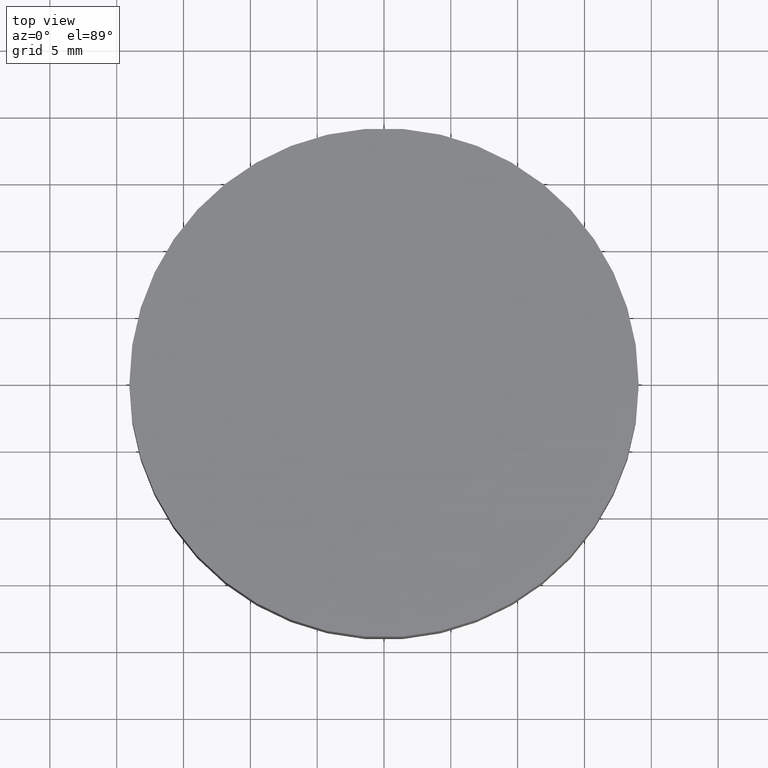
[diagram: clean part render]
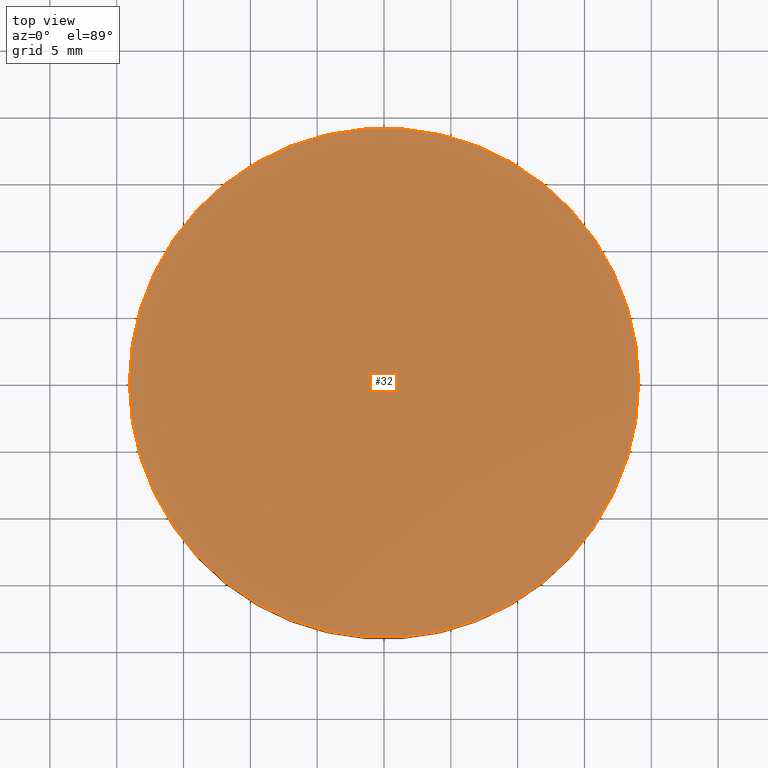
[diagram: same view with one face highlighted and labeled with its STEP entity id]
A machine part, top view. The second image highlights one B-rep face of the part: STEP entity #32.
In plain terms, the highlighted planar face has unit normal (0, 0, 1).
Its self-contained STEP definition (entity closure, byte-faithful):
#1 = FACE_OUTER_BOUND ( 'NONE', #11, .T. ) ;
#9 = AXIS2_PLACEMENT_3D ( 'NONE', #109, #17, #122 ) ;
#11 = EDGE_LOOP ( 'NONE', ( #113, #28 ) ) ;
#13 = CARTESIAN_POINT ( 'NONE',  ( 19.05000000000000100, 2.332952152375708000E-015, 10.00000000000000000 ) ) ;
#17 = DIRECTION ( 'NONE',  ( 0.0000000000000000000, 0.0000000000000000000, 1.000000000000000000 ) ) ;
#19 = DIRECTION ( 'NONE',  ( 0.0000000000000000000, 0.0000000000000000000, 1.000000000000000000 ) ) ;
#28 = ORIENTED_EDGE ( 'NONE', *, *, #61, .T. ) ;
#32 = ADVANCED_FACE ( 'NONE', ( #1 ), #68, .T. ) ;
#39 = DIRECTION ( 'NONE',  ( 0.0000000000000000000, 0.0000000000000000000, 1.000000000000000000 ) ) ;
#44 = VERTEX_POINT ( 'NONE', #139 ) ;
#48 = AXIS2_PLACEMENT_3D ( 'NONE', #52, #19, #80 ) ;
#52 = CARTESIAN_POINT ( 'NONE',  ( 0.0000000000000000000, 0.0000000000000000000, 10.00000000000000000 ) ) ;
#56 = CIRCLE ( 'NONE', #9, 19.05000000000000100 ) ;
#61 = EDGE_CURVE ( 'NONE', #115, #44, #124, .T. ) ;
#68 = PLANE ( 'NONE',  #110 ) ;
#70 = DIRECTION ( 'NONE',  ( 1.000000000000000000, 0.0000000000000000000, -0.0000000000000000000 ) ) ;
#80 = DIRECTION ( 'NONE',  ( 1.000000000000000000, 0.0000000000000000000, 0.0000000000000000000 ) ) ;
#109 = CARTESIAN_POINT ( 'NONE',  ( 0.0000000000000000000, 0.0000000000000000000, 10.00000000000000000 ) ) ;
#110 = AXIS2_PLACEMENT_3D ( 'NONE', #111, #39, #70 ) ;
#111 = CARTESIAN_POINT ( 'NONE',  ( 0.0000000000000000000, 0.0000000000000000000, 10.00000000000000000 ) ) ;
#113 = ORIENTED_EDGE ( 'NONE', *, *, #137, .T. ) ;
#115 = VERTEX_POINT ( 'NONE', #13 ) ;
#122 = DIRECTION ( 'NONE',  ( 1.000000000000000000, 0.0000000000000000000, 0.0000000000000000000 ) ) ;
#124 = CIRCLE ( 'NONE', #48, 19.05000000000000100 ) ;
#137 = EDGE_CURVE ( 'NONE', #44, #115, #56, .T. ) ;
#139 = CARTESIAN_POINT ( 'NONE',  ( -19.05000000000000100, 0.0000000000000000000, 10.00000000000000000 ) ) ;